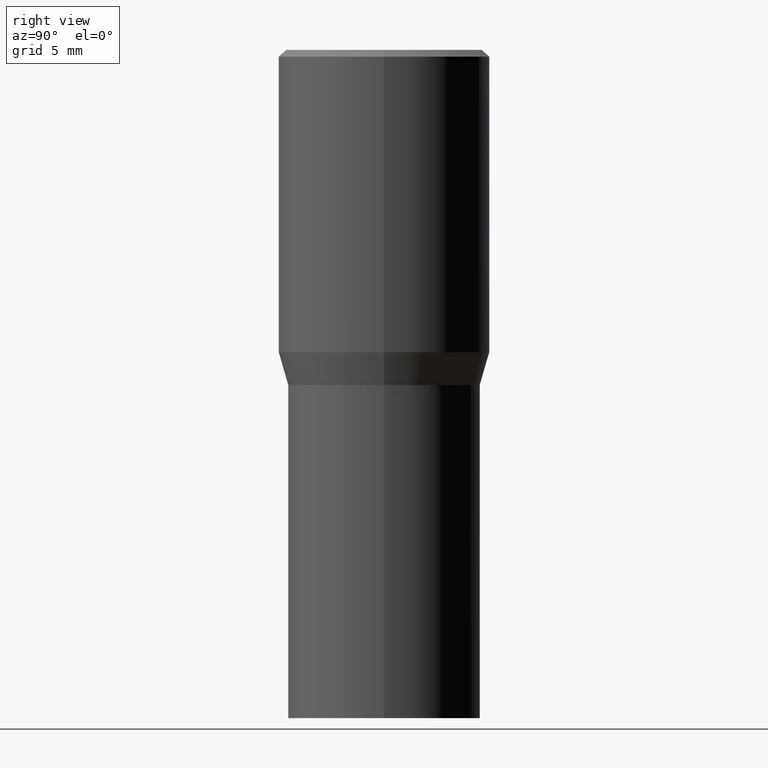
[diagram: clean part render]
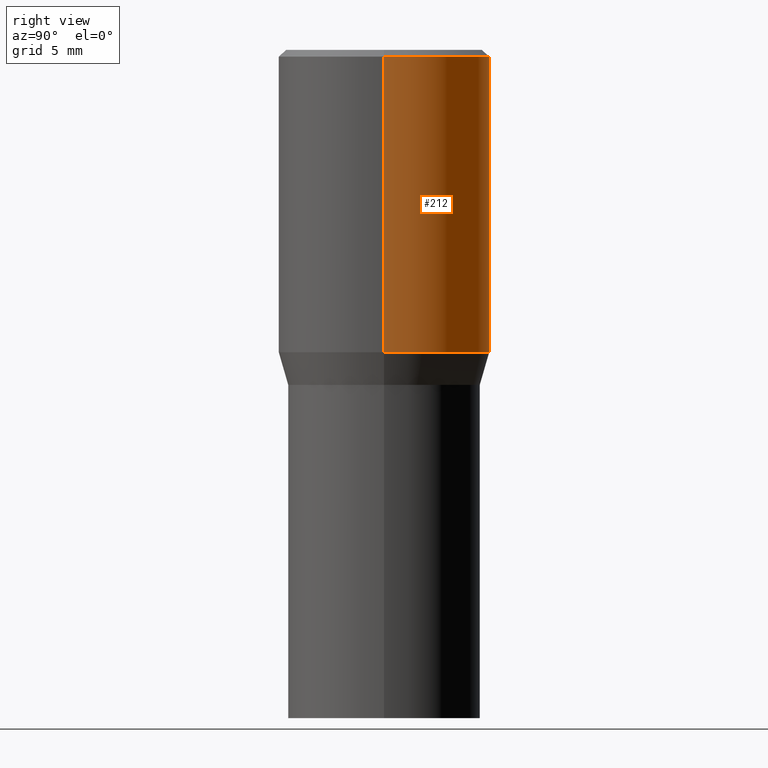
[diagram: same view with one face highlighted and labeled with its STEP entity id]
A machine part, right view. The second image highlights one B-rep face of the part: STEP entity #212.
In plain terms, the highlighted cylindrical surface (partial cylindrical patch) has radius 5.9995 mm, axis along (-0, 0, 1).
Its self-contained STEP definition (entity closure, byte-faithful):
#8 = CARTESIAN_POINT ( 'NONE',  ( 1.659654580432621677E-29, -2.369546886817807077E-15, -0.6786652016312719748 ) ) ;
#9 = CYLINDRICAL_SURFACE ( 'NONE', #245, 0.2361999999999999933 ) ;
#14 = DIRECTION ( 'NONE',  ( -2.445468806185136597E-29, 3.491481338843145583E-15, 1.000000000000000000 ) ) ;
#37 = CARTESIAN_POINT ( 'NONE',  ( -0.2361999999999999933, 1.678301941865356591E-15, -1.161852468318208757E-29 ) ) ;
#41 = VECTOR ( 'NONE', #385, 39.37007874015748143 ) ;
#49 = EDGE_CURVE ( 'NONE', #391, #386, #429, .T. ) ;
#75 = ORIENTED_EDGE ( 'NONE', *, *, #413, .F. ) ;
#90 = VECTOR ( 'NONE', #239, 39.37007874015748143 ) ;
#93 = DIRECTION ( 'NONE',  ( 1.000000000000000000, -6.982962677686266711E-15, 0.000000000000000000 ) ) ;
#104 = ORIENTED_EDGE ( 'NONE', *, *, #348, .T. ) ;
#119 = DIRECTION ( 'NONE',  ( 1.000000000000000000, -6.982962677686266711E-15, 0.000000000000000000 ) ) ;
#133 = VERTEX_POINT ( 'NONE', #275 ) ;
#135 = CARTESIAN_POINT ( 'NONE',  ( 0.2361999999999999933, -1.649375784469496131E-15, 1.151752954443000088E-29 ) ) ;
#154 = DIRECTION ( 'NONE',  ( -2.445468806185136597E-29, 3.491481338843145583E-15, 1.000000000000000000 ) ) ;
#170 = EDGE_CURVE ( 'NONE', #133, #246, #192, .T. ) ;
#192 = LINE ( 'NONE', #135, #90 ) ;
#205 = CIRCLE ( 'NONE', #453, 0.2361999999999999933 ) ;
#212 = ADVANCED_FACE ( 'NONE', ( #343 ), #9, .T. ) ;
#239 = DIRECTION ( 'NONE',  ( -2.445468806185136877E-29, 3.491481338843145188E-15, 1.000000000000000000 ) ) ;
#245 = AXIS2_PLACEMENT_3D ( 'NONE', #399, #14, #381 ) ;
#246 = VERTEX_POINT ( 'NONE', #450 ) ;
#263 = CARTESIAN_POINT ( 'NONE',  ( -0.2361999999999999933, 4.673423884151294145E-16, -0.01499999999999999944 ) ) ;
#266 = CARTESIAN_POINT ( 'NONE',  ( -0.2361999999999999933, -6.912449449524502887E-16, -0.6786652016312719748 ) ) ;
#267 = AXIS2_PLACEMENT_3D ( 'NONE', #8, #371, #93 ) ;
#274 = EDGE_LOOP ( 'NONE', ( #104, #285, #75, #368 ) ) ;
#275 = CARTESIAN_POINT ( 'NONE',  ( 0.2361999999999999933, -4.018922671287303208E-15, -0.6786652016312719748 ) ) ;
#285 = ORIENTED_EDGE ( 'NONE', *, *, #49, .T. ) ;
#340 = CIRCLE ( 'NONE', #267, 0.2361999999999999933 ) ;
#343 = FACE_OUTER_BOUND ( 'NONE', #274, .T. ) ;
#348 = EDGE_CURVE ( 'NONE', #133, #391, #340, .T. ) ;
#368 = ORIENTED_EDGE ( 'NONE', *, *, #170, .F. ) ;
#371 = DIRECTION ( 'NONE',  ( -2.445468806185136597E-29, 3.491481338843145583E-15, 1.000000000000000000 ) ) ;
#381 = DIRECTION ( 'NONE',  ( 1.000000000000000000, -6.982962677686266711E-15, 4.876176775795936353E-29 ) ) ;
#385 = DIRECTION ( 'NONE',  ( -2.445468806185136877E-29, 3.491481338843145188E-15, 1.000000000000000000 ) ) ;
#386 = VERTEX_POINT ( 'NONE', #263 ) ;
#391 = VERTEX_POINT ( 'NONE', #266 ) ;
#399 = CARTESIAN_POINT ( 'NONE',  ( 0.000000000000000000, 0.000000000000000000, 0.000000000000000000 ) ) ;
#400 = CARTESIAN_POINT ( 'NONE',  ( 3.668203209277705088E-31, -5.237222008264718399E-17, -0.01499999999999999944 ) ) ;
#413 = EDGE_CURVE ( 'NONE', #246, #386, #205, .T. ) ;
#429 = LINE ( 'NONE', #37, #41 ) ;
#450 = CARTESIAN_POINT ( 'NONE',  ( 0.2361999999999999933, -1.701748004552143407E-15, -0.01499999999999999944 ) ) ;
#453 = AXIS2_PLACEMENT_3D ( 'NONE', #400, #154, #119 ) ;